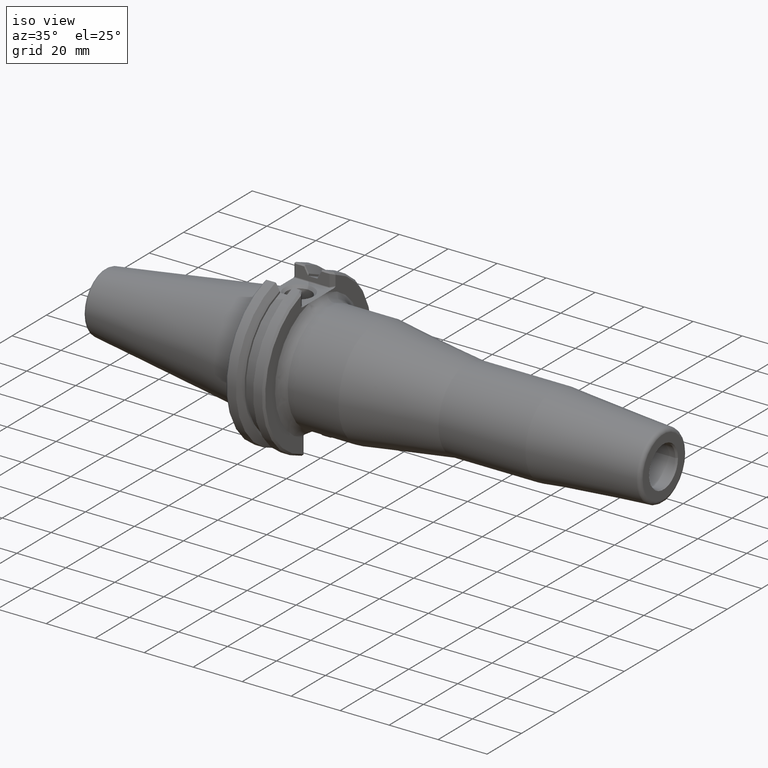
[diagram: clean part render]
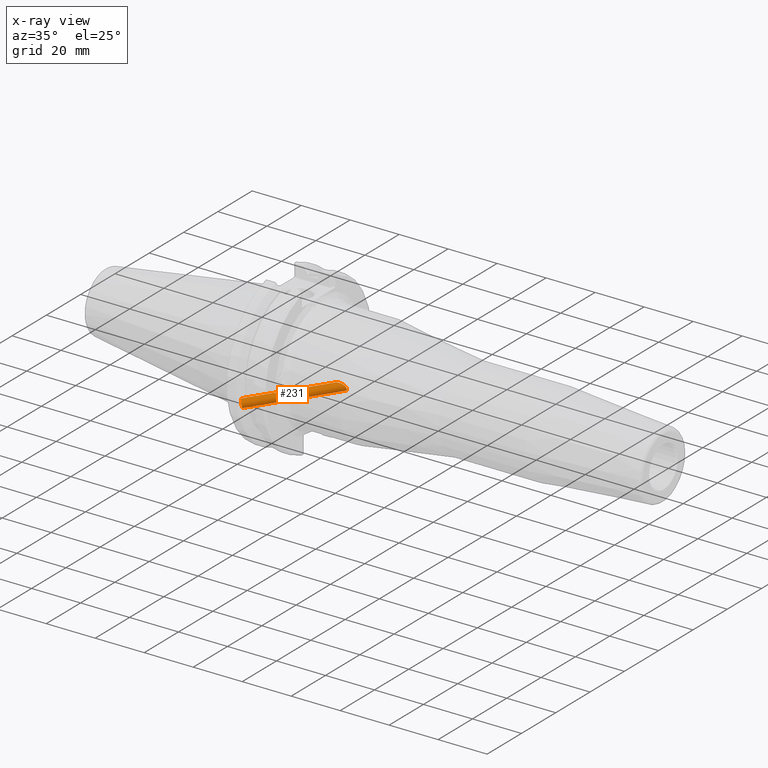
[diagram: x-ray — body ghosted, one internal face saturated and labeled with its STEP entity id]
A machine part, iso view, then the same camera in x-ray: the body is ghosted and one INTERNAL B-rep face — a face not visible from any outside direction — is saturated and labeled: STEP entity #231.
In plain terms, the highlighted cylindrical surface (bore or boss wall) has radius 1.65 mm, axis along (0.8192, 0.539, 0.1962).
Its self-contained STEP definition (entity closure, byte-faithful):
#149=CARTESIAN_POINT('',(5.731887362715521,-25.582310559250171,-9.311199567321024));
#150=VERTEX_POINT('',#149);
#151=CARTESIAN_POINT('',(4.785486242736299,-24.312221192572075,-8.848924842992187));
#152=DIRECTION('',(0.819152044288993,0.538985544695755,0.196174694969011));
#153=DIRECTION('',(0.573576436351045,-0.769751131320058,-0.280166499593236));
#154=AXIS2_PLACEMENT_3D('',#151,#152,#153);
#155=CIRCLE('',#154,1.649999999999998);
#156=EDGE_CURVE('',#150,#150,#155,.T.);
#161=CARTESIAN_POINT('',(21.809385652337436,-13.110838299004524,-4.771954887114974));
#162=DIRECTION('',(0.819152044288993,0.538985544695755,0.196174694969011));
#163=DIRECTION('',(0.573576436351045,-0.769751131320058,-0.280166499593236));
#164=AXIS2_PLACEMENT_3D('',#161,#162,#163);
#165=CYLINDRICAL_SURFACE('',#164,1.649999999999995);
#166=CARTESIAN_POINT('',(32.471849867467988,-5.530818386450406,-3.768946588385424));
#167=VERTEX_POINT('',#166);
#168=CARTESIAN_POINT('',(32.471849867467995,-5.530818386450407,-3.768946588385424));
#169=CARTESIAN_POINT('',(32.885832995321678,-5.530818386450407,-3.768946588385424));
#170=CARTESIAN_POINT('',(33.349794450932251,-5.563699459490496,-3.723069050991570));
#171=CARTESIAN_POINT('',(33.765260209273706,-5.641817186800457,-3.600667888145612));
#172=CARTESIAN_POINT('',(33.941010817864878,-5.674862601111595,-3.548889664716751));
#173=CARTESIAN_POINT('',(34.108167463368233,-5.715514736191694,-3.483715015754937));
#174=CARTESIAN_POINT('',(34.259895934768402,-5.762325198061074,-3.404485089083284));
#175=CARTESIAN_POINT('',(34.372620644468746,-5.797102426596173,-3.345622237561590));
#176=CARTESIAN_POINT('',(34.478535473700624,-5.835546683519191,-3.278669902818949));
#177=CARTESIAN_POINT('',(34.578285350669383,-5.879268063686190,-3.198299148816389));
#178=CARTESIAN_POINT('',(34.775830408625666,-5.965854060997483,-3.039132584005498));
#179=CARTESIAN_POINT('',(34.933945960698424,-6.069945902072223,-2.830942971501915));
#180=CARTESIAN_POINT('',(35.006348745703868,-6.167839163855254,-2.598590090570909));
#181=CARTESIAN_POINT('',(35.078875483660980,-6.265900018069226,-2.365839423485450));
#182=CARTESIAN_POINT('',(35.066487229991715,-6.355533829520422,-2.112612971455610));
#183=CARTESIAN_POINT('',(34.971940582330205,-6.424761157588072,-1.875461137413299));
#184=CARTESIAN_POINT('',(34.881711825174349,-6.490826913775723,-1.649139889943180));
#185=CARTESIAN_POINT('',(34.716568675384046,-6.537805185083642,-1.441882609290063));
#186=CARTESIAN_POINT('',(34.522093206011689,-6.569251061300712,-1.280566633799073));
#187=CARTESIAN_POINT('',(34.378983955964024,-6.592391233051115,-1.161858560499494));
#188=CARTESIAN_POINT('',(34.225876610854236,-6.607651268922319,-1.067955582561718));
#189=CARTESIAN_POINT('',(34.056426970259864,-6.619700633342930,-0.987154463556344));
#190=CARTESIAN_POINT('',(33.706523199794908,-6.644581878459117,-0.820304796017379));
#191=CARTESIAN_POINT('',(33.298835582378572,-6.653635743489513,-0.724865149534118));
#192=CARTESIAN_POINT('',(32.904065149508995,-6.657463987616047,-0.687810776009981));
#193=CARTESIAN_POINT('',(32.744037989541560,-6.659015833915118,-0.672790131945184));
#194=CARTESIAN_POINT('',(32.587903260191140,-6.659584904240082,-0.666963723988320));
#195=CARTESIAN_POINT('',(32.435421772960346,-6.659471269705223,-0.668096413678969));
#196=CARTESIAN_POINT('',(31.815269075501789,-6.659009110235267,-0.672703140566256));
#197=CARTESIAN_POINT('',(31.118742651155578,-6.649765889768569,-0.799926204905660));
#198=CARTESIAN_POINT('',(30.522612955464265,-6.609948705314420,-1.050470619823431));
#199=CARTESIAN_POINT('',(30.344776097753648,-6.598070479791703,-1.125212797218655));
#200=CARTESIAN_POINT('',(30.175719026926068,-6.583225812787445,-1.210742733387041));
#201=CARTESIAN_POINT('',(30.020602798999963,-6.563829076958269,-1.308074255719889));
#202=CARTESIAN_POINT('',(29.907977713974887,-6.549745708305116,-1.378743657141766));
#203=CARTESIAN_POINT('',(29.794441022644968,-6.532178397928347,-1.461053133721227));
#204=CARTESIAN_POINT('',(29.692080750422960,-6.510005123065062,-1.553944563897520));
#205=CARTESIAN_POINT('',(29.535724220285626,-6.476135182665868,-1.695837325479459));
#206=CARTESIAN_POINT('',(29.406296076888786,-6.431382104000685,-1.862422566107379));
#207=CARTESIAN_POINT('',(29.342949094992907,-6.373127789762060,-2.044052980077218));
#208=CARTESIAN_POINT('',(29.303358390234855,-6.336719909119934,-2.157568665897610));
#209=CARTESIAN_POINT('',(29.290371482579602,-6.293862760368914,-2.279836788468401));
#210=CARTESIAN_POINT('',(29.308405620214458,-6.249361284420499,-2.395911923837387));
#211=CARTESIAN_POINT('',(29.350866472148716,-6.144583855116126,-2.669207450129986));
#212=CARTESIAN_POINT('',(29.556236317116980,-6.033884767649893,-2.902759148006534));
#213=CARTESIAN_POINT('',(29.800402844213387,-5.943225552437527,-3.077820729485989));
#214=CARTESIAN_POINT('',(29.976556944103848,-5.877819402616654,-3.204119021383870));
#215=CARTESIAN_POINT('',(30.162125784155425,-5.824230014749396,-3.298892687795157));
#216=CARTESIAN_POINT('',(30.364721347108699,-5.775129334428298,-3.382719553942621));
#217=CARTESIAN_POINT('',(30.956226746302804,-5.631773196264842,-3.627463531554717));
#218=CARTESIAN_POINT('',(31.669737592902703,-5.543761333018638,-3.749938761855596));
#219=CARTESIAN_POINT('',(32.315082730372268,-5.532226667824571,-3.766879146695661));
#220=CARTESIAN_POINT('',(32.367833461873616,-5.531283820360041,-3.768263859526584));
#221=CARTESIAN_POINT('',(32.420123826504849,-5.530818386450406,-3.768946588385424));
#222=CARTESIAN_POINT('',(32.471849867467995,-5.530818386450406,-3.768946588385424));
#223=B_SPLINE_CURVE_WITH_KNOTS('',3,(#168,#169,#170,#171,#172,#173,#174,#175,#176,#177,#178,#179,#180,#181,#182,#183,#184,#185,#186,#187,#188,#189,#190,#191,#192,#193,#194,#195,#196,#197,#198,#199,#200,#201,#202,#203,#204,#205,#206,#207,#208,#209,#210,#211,#212,#213,#214,#215,#216,#217,#218,#219,#220,#221,#222),.UNSPECIFIED.,.T.,.U.,(4,3,3,3,3,3,3,3,3,3,3,3,3,3,3,3,3,3,4),(0.0,0.124194938356104,0.176731965925269,0.215763672543032,0.293062221476118,0.370493104867041,0.444387764769272,0.498764850965620,0.611050409201453,0.656567341306077,0.841687835192627,0.896912809168205,0.937009950986726,0.998258810794082,1.036538227631747,1.126665999936880,1.191688739926438,1.381531504563335,1.397049316852278),.UNSPECIFIED.);
#224=EDGE_CURVE('',#167,#167,#223,.T.);
#225=ORIENTED_EDGE('',*,*,#224,.F.);
#226=EDGE_LOOP('',(#225));
#227=FACE_OUTER_BOUND('',#226,.T.);
#228=ORIENTED_EDGE('',*,*,#156,.F.);
#229=EDGE_LOOP('',(#228));
#230=FACE_BOUND('',#229,.T.);
#231=ADVANCED_FACE('',(#227,#230),#165,.F.);